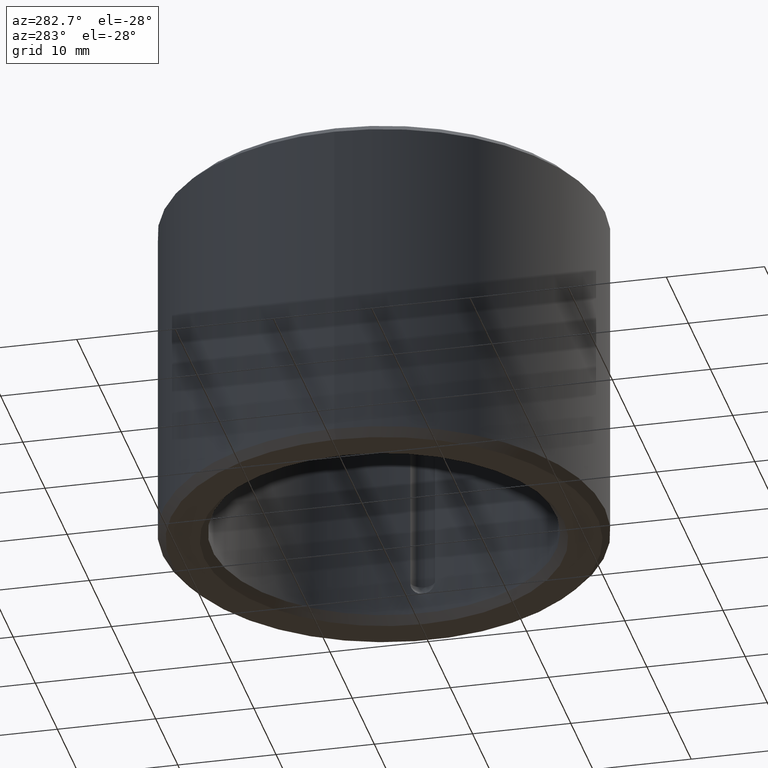
[diagram: clean part render]
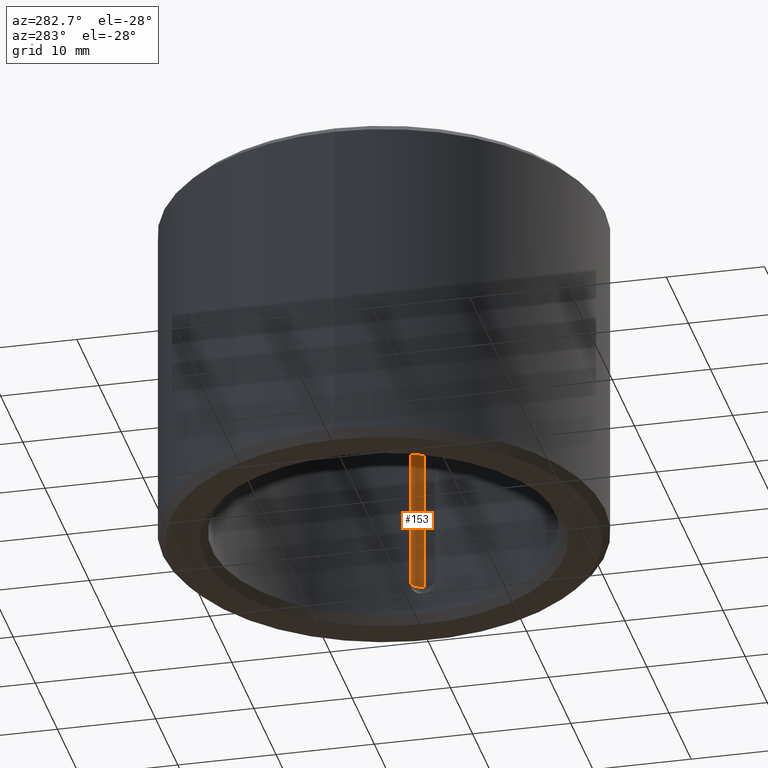
[diagram: same view with one face highlighted and labeled with its STEP entity id]
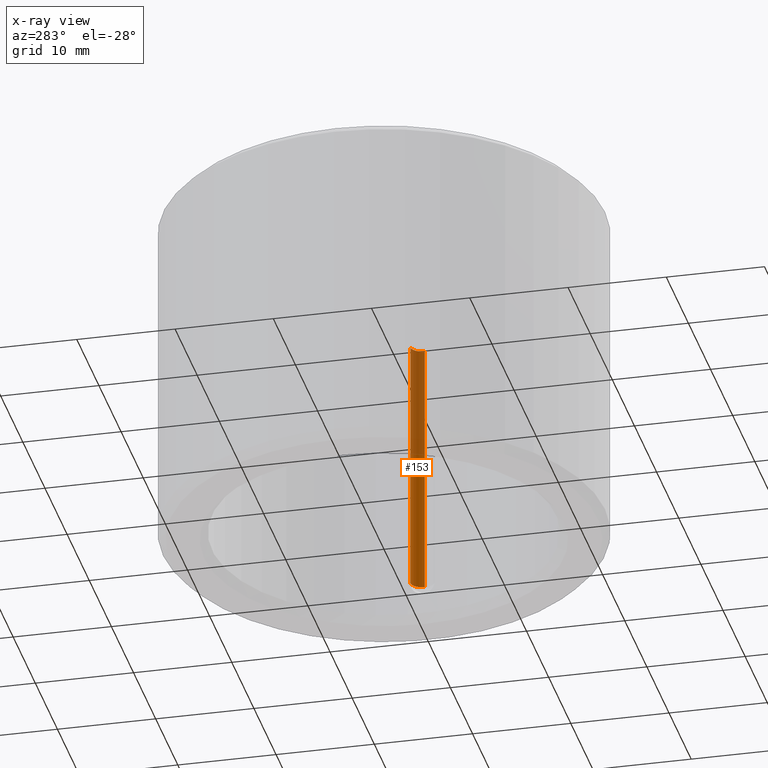
[diagram: x-ray of the same camera — body ghosted, the highlighted face saturated]
A machine part, auxiliary view. The second image highlights one B-rep face of the part: STEP entity #153.
The next image is the same camera in x-ray: the body ghosted, the highlighted face saturated — about 44% of this face is hidden behind the body in this view.
In plain terms, the highlighted cylindrical surface (edge-blend (fillet) strip) has radius 1.25 mm, axis along (-0, 0, -1).
Its self-contained STEP definition (entity closure, byte-faithful):
#153=ADVANCED_FACE('',(#168),#169,.F.);
#168=FACE_OUTER_BOUND('',#204,.T.);
#169=CYLINDRICAL_SURFACE('',#205,0.00125);
#204=EDGE_LOOP('',(#6215,#6216,#6217,#6218));
#205=AXIS2_PLACEMENT_3D('',#6219,#6220,#6221);
#6215=ORIENTED_EDGE('',*,*,#6288,.T.);
#6216=ORIENTED_EDGE('',*,*,#6289,.F.);
#6217=ORIENTED_EDGE('',*,*,#6290,.F.);
#6218=ORIENTED_EDGE('',*,*,#6291,.F.);
#6219=CARTESIAN_POINT('',(1.69744984245008E-005,-0.01725,9.60408649759382E-019));
#6220=DIRECTION('',(0.0,-6.12323399573677E-017,-1.0));
#6221=DIRECTION('',(0.0,1.0,-6.12323399573677E-017));
#6288=EDGE_CURVE('',#6308,#6309,#6310,.F.);
#6289=EDGE_CURVE('',#6311,#6309,#6312,.F.);
#6290=EDGE_CURVE('',#6313,#6311,#6314,.T.);
#6291=EDGE_CURVE('',#6308,#6313,#6315,.T.);
#6308=VERTEX_POINT('',#6344);
#6309=VERTEX_POINT('',#6345);
#6310=CIRCLE('',#6346,0.00125);
#6311=VERTEX_POINT('',#6347);
#6312=LINE('',#6348,#6349);
#6313=VERTEX_POINT('',#6350);
#6314=CIRCLE('',#6351,0.00125);
#6315=LINE('',#6352,#6353);
#6344=CARTESIAN_POINT('',(1.69744984245008E-005,-0.0185,0.03075));
#6345=CARTESIAN_POINT('',(0.00125000000000003,-0.0174553000547112,0.03075));
#6346=AXIS2_PLACEMENT_3D('',#6606,#6607,#6608);
#6347=CARTESIAN_POINT('',(0.00125000000000003,-0.0174553000547112,0.00425));
#6348=CARTESIAN_POINT('',(0.00125000000000003,-0.0174553000547112,9.60408649759382E-019));
#6349=VECTOR('',#6609,1.0);
#6350=CARTESIAN_POINT('',(1.69744984245008E-005,-0.0185,0.00425));
#6351=AXIS2_PLACEMENT_3D('',#6610,#6611,#6612);
#6352=CARTESIAN_POINT('',(1.69744984245008E-005,-0.0185,0.03075));
#6353=VECTOR('',#6613,1.0);
#6606=CARTESIAN_POINT('',(1.69744984319851E-005,-0.01725,0.03075));
#6607=DIRECTION('',(0.0,0.0,-1.0));
#6608=DIRECTION('',(-1.0,0.0,0.0));
#6609=DIRECTION('',(0.0,-6.12323399573677E-017,-1.0));
#6610=CARTESIAN_POINT('',(1.69744984245008E-005,-0.01725,0.00425));
#6611=DIRECTION('',(0.0,0.0,1.0));
#6612=DIRECTION('',(1.0,0.0,0.0));
#6613=DIRECTION('',(0.0,0.0,-1.0));